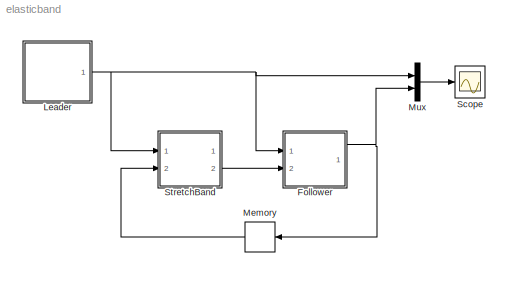
MODEL elasticband
KIND model
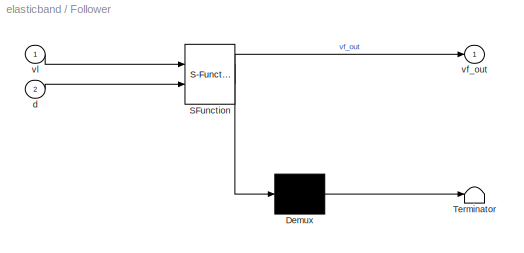
BLOCK [SubSystem] Follower
  ErrorFcn = Stateflow.Translate.translate
  PermitHierarchicalResolution = ExplicitOnly
  Ports = [2, 1]
  RequestExecContextInheritance = off
  SFBlockType = Chart
  SID = 3
  TreatAsAtomicUnit = on
BLOCK [Demux] Follower/ Demux 
  Outputs = 1
  Ports = [1, 1]
  SID = 3::90
BLOCK [S-Function] Follower/ SFunction 
  EnableBusSupport = on
  FunctionName = sf_sfun
  PortCounts = [2 2]
  Ports = [2, 2]
  SFcnIsStateOwnerBlock = off
  SFunctionDeploymentMode = off
  SID = 3::89
  Tag = Stateflow S-Function elasticband 1
BLOCK [Terminator] Follower/ Terminator 
  SID = 3::91
BLOCK [Inport] Follower/d
  IconDisplay = Port number
  Port = 2
  SID = 3::94
BLOCK [Outport] Follower/vf_out
  IconDisplay = Port number
  SID = 3::93
BLOCK [Inport] Follower/vl
  IconDisplay = Port number
  SID = 3::95
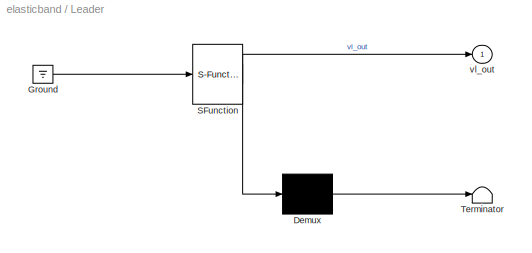
BLOCK [SubSystem] Leader
  ErrorFcn = Stateflow.Translate.translate
  PermitHierarchicalResolution = ExplicitOnly
  Ports = [0, 1]
  RequestExecContextInheritance = off
  SFBlockType = Chart
  SID = 1
  TreatAsAtomicUnit = on
BLOCK [Demux] Leader/ Demux 
  Outputs = 1
  Ports = [1, 1]
  SID = 1::90
BLOCK [Ground] Leader/ Ground 
  SID = 1::92
BLOCK [S-Function] Leader/ SFunction 
  EnableBusSupport = on
  FunctionName = sf_sfun
  PortCounts = [1 2]
  Ports = [1, 2]
  SFcnIsStateOwnerBlock = off
  SFunctionDeploymentMode = off
  SID = 1::89
  Tag = Stateflow S-Function elasticband 3
BLOCK [Terminator] Leader/ Terminator 
  SID = 1::91
BLOCK [Outport] Leader/vl_out
  IconDisplay = Port number
  SID = 1::93
BLOCK [Memory] Memory
  SID = 16
BLOCK [Mux] Mux
  DisplayOption = bar
  Inputs = 2
  Ports = [2, 1]
  SID = 6
BLOCK [Scope] Scope
  Floating = off
  NumInputPorts = 1
  Ports = [1]
  SID = 2
  ScopeSpecificationString = Simulink.scopes.TimeScopeBlockCfg('CurrentConfiguration', extmgr.ConfigurationSet(extmgr.Configuration('Core','General UI',true),extmgr.Configuration('Core','Source UI',true),extmgr.Configuration('Sources','WiredSimulink',true),extmgr.Configuration('Visuals','Time Domain',true,'SerializedDisplays',{struct('MinYLimReal','-3.00685','MaxYLimReal','27.06168','YLabelReal','','MinYLimMag','0.00000','Max...<+1418ch>
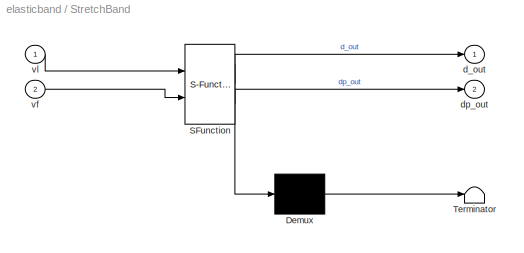
BLOCK [SubSystem] StretchBand
  ErrorFcn = Stateflow.Translate.translate
  PermitHierarchicalResolution = ExplicitOnly
  Ports = [2, 2]
  RequestExecContextInheritance = off
  SFBlockType = Chart
  SID = 4
  TreatAsAtomicUnit = on
BLOCK [Demux] StretchBand/ Demux 
  Outputs = 1
  Ports = [1, 1]
  SID = 4::90
BLOCK [S-Function] StretchBand/ SFunction 
  EnableBusSupport = on
  FunctionName = sf_sfun
  PortCounts = [2 3]
  Ports = [2, 3]
  SFcnIsStateOwnerBlock = off
  SFunctionDeploymentMode = off
  SID = 4::89
  Tag = Stateflow S-Function elasticband 2
BLOCK [Terminator] StretchBand/ Terminator 
  SID = 4::91
BLOCK [Outport] StretchBand/d_out
  IconDisplay = Port number
  SID = 4::93
BLOCK [Outport] StretchBand/dp_out
  IconDisplay = Port number
  Port = 2
  SID = 4::96
BLOCK [Inport] StretchBand/vf
  IconDisplay = Port number
  Port = 2
  SID = 4::95
BLOCK [Inport] StretchBand/vl
  IconDisplay = Port number
  SID = 4::94
LINE Follower/ Demux :1 -> Follower/ Terminator :1
LINE Follower/ SFunction :1 -> Follower/ Demux :1
LINE Follower/ SFunction :2 -> Follower/vf_out:1
LINE Follower/d:1 -> Follower/ SFunction :2
LINE Follower/vl:1 -> Follower/ SFunction :1
NET Follower:1 -> Memory:1, Mux:2
LINE Leader/ Demux :1 -> Leader/ Terminator :1
LINE Leader/ Ground :1 -> Leader/ SFunction :1
LINE Leader/ SFunction :1 -> Leader/ Demux :1
LINE Leader/ SFunction :2 -> Leader/vl_out:1
NET Leader:1 -> Follower:1, Mux:1, StretchBand:1
LINE Memory:1 -> StretchBand:2
LINE Mux:1 -> Scope:1
LINE StretchBand/ Demux :1 -> StretchBand/ Terminator :1
LINE StretchBand/ SFunction :1 -> StretchBand/ Demux :1
LINE StretchBand/ SFunction :2 -> StretchBand/d_out:1
LINE StretchBand/ SFunction :3 -> StretchBand/dp_out:1
LINE StretchBand/vf:1 -> StretchBand/ SFunction :2
LINE StretchBand/vl:1 -> StretchBand/ SFunction :1
LINE StretchBand:2 -> Follower:2
note: NET lines group one-source signal fan-out (src -> all destinations, sorted); 1:1 wires keep LINE
CHART Follower states=3 transitions=5
  STATE_LABEL 'ACC\\ndu:\\nvf_dot = 0.7 * (d - 10) + (vl - vf) * 0.7;\\nvf_out = vf;'
  STATE_LABEL 'Stop\\ndu:\\nvf_dot = 0;\\nvf_out = vf;'
  STATE_LABEL 'Emergency\\ndu:\\nvf_dot = -6;\\nvf_out = vf;'
CHART StretchBand states=2 transitions=3
  STATE_LABEL 'OverEstimate\\ndu:\\nd_dot = vl - vf;\\nd_out = d;\\ndp_out = d * 1.05;'
  STATE_LABEL 'Normal\\ndu:\\nd_dot = vl - vf;\\nd_out = d;\\ndp_out = d;'
CHART Leader states=3 transitions=4
  STATE_LABEL 'ConstAcc\\ndu:\\nvl_dot = -3 * cos(3 * pi * tau) + 3;\\ntau_dot = 0;\\nvl_out = vl;'
  STATE_LABEL 'IncAcc\\ndu:\\nvl_dot = -3 * cos(3 * pi * tau) + 3;\\ntau_dot = 1;\\nvl_out = vl;'
  STATE_LABEL 'DecAcc\\ndu:\\nvl_dot = - 0.7 * vl * (1 - vl / 17) - 0.2;\\ntau_dot = 0;\\nvl_out = vl;'
